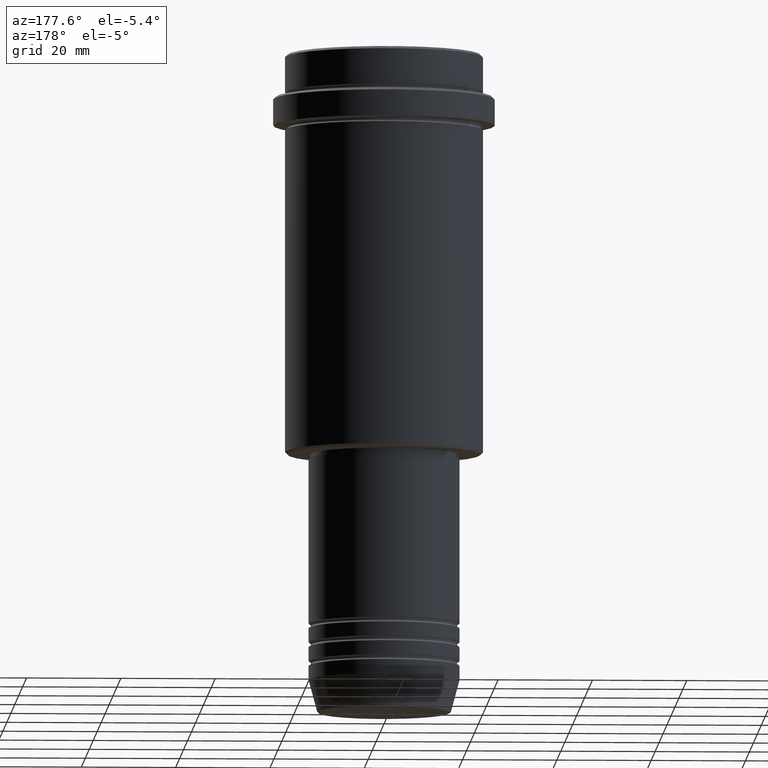
[diagram: clean part render]
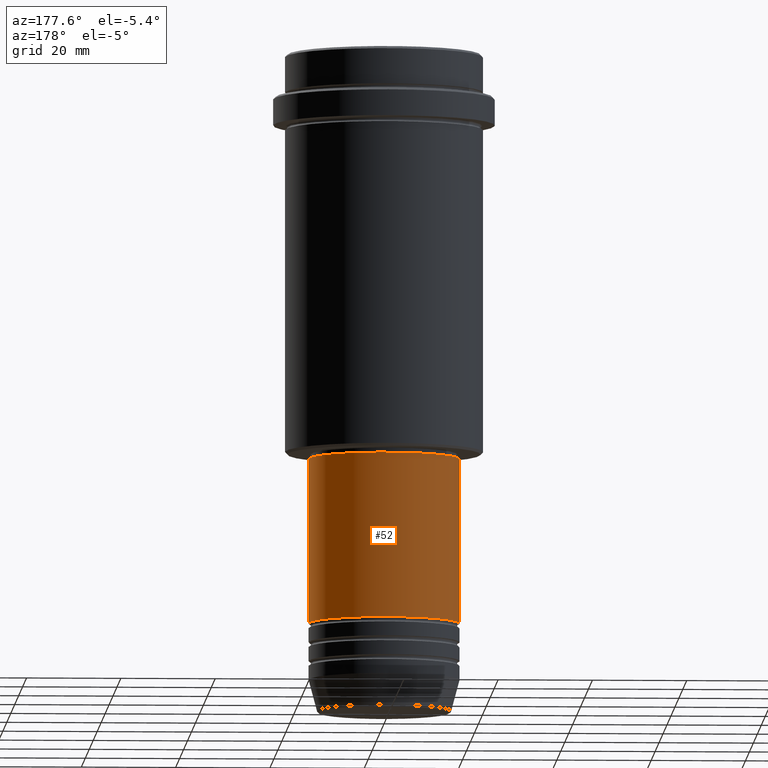
[diagram: same view with one face highlighted and labeled with its STEP entity id]
A machine part, auxiliary view. The second image highlights one B-rep face of the part: STEP entity #52.
In plain terms, the highlighted cylindrical surface (partial cylindrical patch) has radius 16 mm, axis along (-0, -0, 1).
Its self-contained STEP definition (entity closure, byte-faithful):
#52 = ADVANCED_FACE ( 'NONE', ( #193 ), #490, .T. ) ;
#111 = AXIS2_PLACEMENT_3D ( 'NONE', #1056, #861, #412 ) ;
#112 = ORIENTED_EDGE ( 'NONE', *, *, #404, .F. ) ;
#134 = VECTOR ( 'NONE', #808, 1000.000000000000000 ) ;
#193 = FACE_OUTER_BOUND ( 'NONE', #648, .T. ) ;
#337 = AXIS2_PLACEMENT_3D ( 'NONE', #786, #1335, #1019 ) ;
#368 = CARTESIAN_POINT ( 'NONE',  ( -16.00000000000000000, 1.959434878635765131E-15, 0.000000000000000000 ) ) ;
#384 = AXIS2_PLACEMENT_3D ( 'NONE', #1167, #405, #517 ) ;
#404 = EDGE_CURVE ( 'NONE', #1009, #1303, #455, .T. ) ;
#405 = DIRECTION ( 'NONE',  ( -0.000000000000000000, -0.000000000000000000, 1.000000000000000000 ) ) ;
#412 = DIRECTION ( 'NONE',  ( 1.000000000000000000, 0.000000000000000000, 0.000000000000000000 ) ) ;
#455 = LINE ( 'NONE', #468, #902 ) ;
#468 = CARTESIAN_POINT ( 'NONE',  ( 16.00000000000000000, 0.000000000000000000, 0.000000000000000000 ) ) ;
#490 = CYLINDRICAL_SURFACE ( 'NONE', #384, 16.00000000000000000 ) ;
#515 = EDGE_CURVE ( 'NONE', #1303, #802, #813, .T. ) ;
#517 = DIRECTION ( 'NONE',  ( 1.000000000000000000, 0.000000000000000000, 0.000000000000000000 ) ) ;
#518 = CIRCLE ( 'NONE', #337, 16.00000000000000000 ) ;
#521 = CARTESIAN_POINT ( 'NONE',  ( 16.00000000000000000, 0.000000000000000000, -120.9999999999999005 ) ) ;
#579 = LINE ( 'NONE', #368, #134 ) ;
#648 = EDGE_LOOP ( 'NONE', ( #869, #656, #1412, #112 ) ) ;
#656 = ORIENTED_EDGE ( 'NONE', *, *, #766, .T. ) ;
#667 = DIRECTION ( 'NONE',  ( -0.000000000000000000, -0.000000000000000000, 1.000000000000000000 ) ) ;
#766 = EDGE_CURVE ( 'NONE', #1049, #802, #579, .T. ) ;
#786 = CARTESIAN_POINT ( 'NONE',  ( 0.000000000000000000, 0.000000000000000000, -120.9999999999999005 ) ) ;
#802 = VERTEX_POINT ( 'NONE', #1235 ) ;
#808 = DIRECTION ( 'NONE',  ( -0.000000000000000000, -0.000000000000000000, 1.000000000000000000 ) ) ;
#813 = CIRCLE ( 'NONE', #111, 16.00000000000000355 ) ;
#861 = DIRECTION ( 'NONE',  ( -0.000000000000000000, -0.000000000000000000, 1.000000000000000000 ) ) ;
#869 = ORIENTED_EDGE ( 'NONE', *, *, #1183, .T. ) ;
#902 = VECTOR ( 'NONE', #667, 1000.000000000000000 ) ;
#996 = CARTESIAN_POINT ( 'NONE',  ( -16.00000000000000000, 1.959434878635765131E-15, -120.9999999999999005 ) ) ;
#1009 = VERTEX_POINT ( 'NONE', #521 ) ;
#1019 = DIRECTION ( 'NONE',  ( 1.000000000000000000, 0.000000000000000000, 0.000000000000000000 ) ) ;
#1049 = VERTEX_POINT ( 'NONE', #996 ) ;
#1056 = CARTESIAN_POINT ( 'NONE',  ( 0.000000000000000000, 0.000000000000000000, -86.00000000000001421 ) ) ;
#1167 = CARTESIAN_POINT ( 'NONE',  ( 0.000000000000000000, 0.000000000000000000, 0.000000000000000000 ) ) ;
#1183 = EDGE_CURVE ( 'NONE', #1009, #1049, #518, .T. ) ;
#1235 = CARTESIAN_POINT ( 'NONE',  ( -16.00000000000000355, 1.959434878635765526E-15, -86.00000000000001421 ) ) ;
#1303 = VERTEX_POINT ( 'NONE', #1352 ) ;
#1335 = DIRECTION ( 'NONE',  ( -0.000000000000000000, -0.000000000000000000, 1.000000000000000000 ) ) ;
#1352 = CARTESIAN_POINT ( 'NONE',  ( 16.00000000000000355, 0.000000000000000000, -86.00000000000001421 ) ) ;
#1412 = ORIENTED_EDGE ( 'NONE', *, *, #515, .F. ) ;